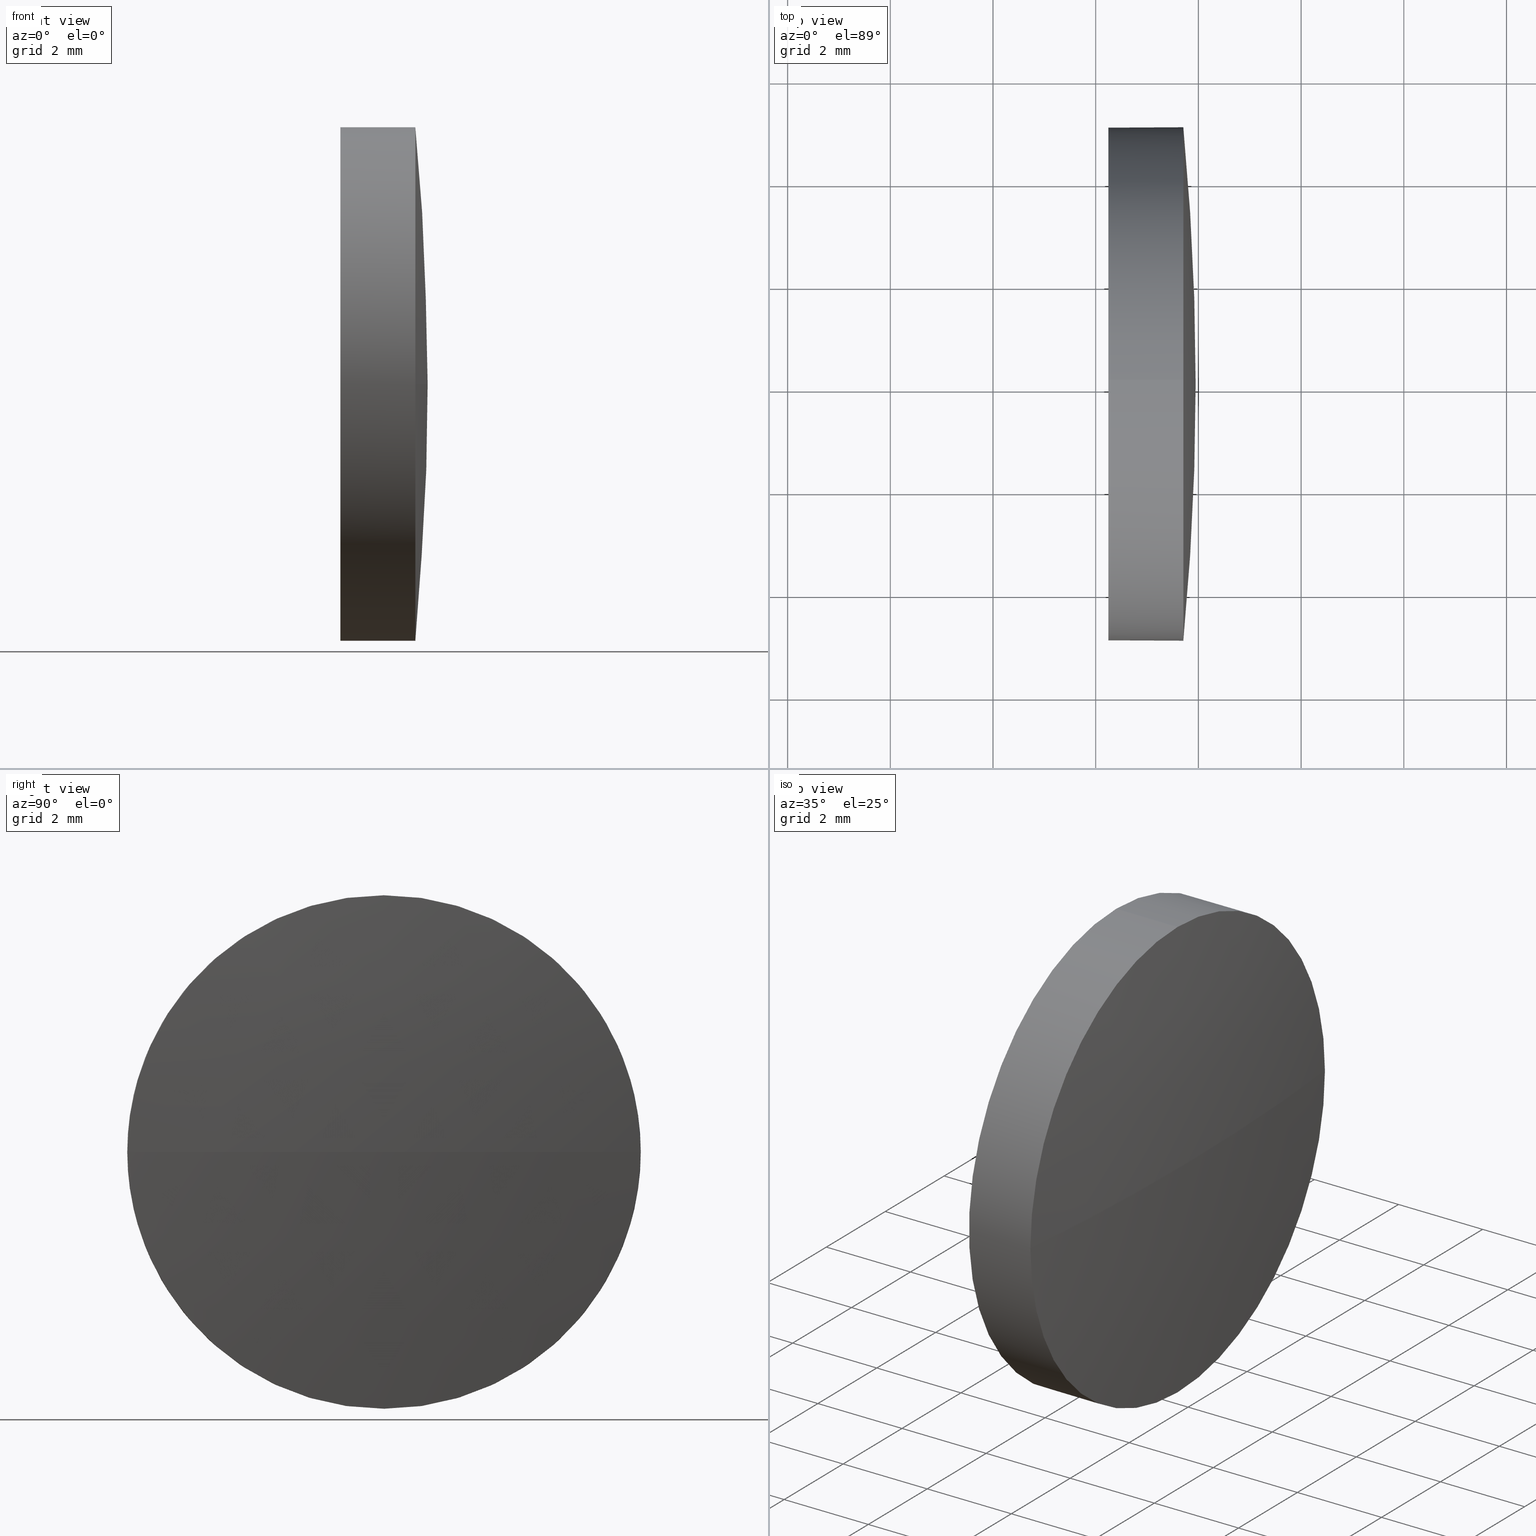
[diagram: canonical four-view strip — front | top / right | iso, engineering-drawing reading convention]
A machine part, canonical four-view strip (front | top / right | iso — engineering-drawing reading convention). The complete STEP part file that produces these views, byte-faithful:
ISO-10303-21;
HEADER;
FILE_DESCRIPTION (( 'STEP AP214' ),
    '1' );
FILE_NAME ('100022.STEP',
    '2019-04-19T09:07:38',
    ( '' ),
    ( '' ),
    'SwSTEP 2.0',
    'SolidWorks 2016',
    '' );
FILE_SCHEMA (( 'AUTOMOTIVE_DESIGN' ));
ENDSEC;

DATA;
#1 = EDGE_CURVE ( 'NONE', #61, #173, #166, .T. ) ;
#2 = CLOSED_SHELL ( 'NONE', ( #64, #90, #119, #7, #147 ) ) ;
#3 = FACE_OUTER_BOUND ( 'NONE', #56, .T. ) ;
#4 = ORIENTED_EDGE ( 'NONE', *, *, #122, .T. ) ;
#5 =( GEOMETRIC_REPRESENTATION_CONTEXT ( 3 ) GLOBAL_UNCERTAINTY_ASSIGNED_CONTEXT ( ( #62 ) ) GLOBAL_UNIT_ASSIGNED_CONTEXT ( ( #11, #157, #140 ) ) REPRESENTATION_CONTEXT ( 'NONE', 'WORKASPACE' ) );
#6 = PRODUCT_DEFINITION ( 'δ֪', '', #28, #55 ) ;
#7 = ADVANCED_FACE ( 'NONE', ( #73 ), #71, .T. ) ;
#8 = CIRCLE ( 'NONE', #115, 5.000000000000004400 ) ;
#9 = ORIENTED_EDGE ( 'NONE', *, *, #74, .T. ) ;
#10 = CARTESIAN_POINT ( 'NONE',  ( 861.0148035766878800, 272.0667611182083200, -5.000000000000004400 ) ) ;
#11 =( LENGTH_UNIT ( ) NAMED_UNIT ( * ) SI_UNIT ( .MILLI., .METRE. ) );
#12 = EDGE_CURVE ( 'NONE', #78, #118, #33, .T. ) ;
#13 = ORIENTED_EDGE ( 'NONE', *, *, #12, .F. ) ;
#14 = SURFACE_SIDE_STYLE ('',( #58 ) ) ;
#15 = DIRECTION ( 'NONE',  ( 0.0000000000000000000, 1.000000000000000000, 0.0000000000000000000 ) ) ;
#16 = EDGE_CURVE ( 'NONE', #160, #42, #150, .T. ) ;
#17 = PLANE ( 'NONE',  #85 ) ;
#18 = EDGE_CURVE ( 'NONE', #173, #118, #8, .T. ) ;
#19 = UNCERTAINTY_MEASURE_WITH_UNIT (LENGTH_MEASURE( 1.000000000000000100E-005 ), #128, 'distance_accuracy_value', 'NONE');
#20 = DIRECTION ( 'NONE',  ( -0.0000000000000000000, 0.0000000000000000000, -1.000000000000000000 ) ) ;
#21 = STYLED_ITEM ( 'NONE', ( #149 ), #39 ) ;
#22 = CIRCLE ( 'NONE', #131, 5.000000000000004400 ) ;
#23 = EDGE_LOOP ( 'NONE', ( #134, #67, #54, #132, #183 ) ) ;
#24 = EDGE_CURVE ( 'NONE', #118, #160, #38, .T. ) ;
#25 = DIRECTION ( 'NONE',  ( 0.0000000000000000000, 0.0000000000000000000, 1.000000000000000000 ) ) ;
#26 = AXIS2_PLACEMENT_3D ( 'NONE', #53, #130, #97 ) ;
#27 = DIRECTION ( 'NONE',  ( 0.0000000000000000000, 0.0000000000000000000, 1.000000000000000000 ) ) ;
#28 = PRODUCT_DEFINITION_FORMATION_WITH_SPECIFIED_SOURCE ( '�κ�', '', #80, .NOT_KNOWN. ) ;
#29 = CARTESIAN_POINT ( 'NONE',  ( 861.0148035766878800, 272.0667611182083200, 5.000000000000004400 ) ) ;
#30 = DIRECTION ( 'NONE',  ( 1.000000000000000000, 0.0000000000000000000, 0.0000000000000000000 ) ) ;
#31 = AXIS2_PLACEMENT_3D ( 'NONE', #129, #72, #156 ) ;
#32 =( LENGTH_UNIT ( ) NAMED_UNIT ( * ) SI_UNIT ( .MILLI., .METRE. ) );
#33 = CIRCLE ( 'NONE', #77, 52.20333333333326900 ) ;
#34 =( NAMED_UNIT ( * ) PLANE_ANGLE_UNIT ( ) SI_UNIT ( $, .RADIAN. ) );
#35 = SURFACE_STYLE_FILL_AREA ( #69 ) ;
#36 = SPHERICAL_SURFACE ( 'NONE', #75, 52.20333333333326900 ) ;
#37 = EDGE_CURVE ( 'NONE', #173, #154, #144, .T. ) ;
#38 = CIRCLE ( 'NONE', #151, 5.000000000000004400 ) ;
#39 = ADVANCED_BREP_SHAPE_REPRESENTATION ( '100022', ( #68, #174 ), #105 ) ;
#40 = AXIS2_PLACEMENT_3D ( 'NONE', #138, #139, #170 ) ;
#41 = COLOUR_RGB ( '',1.000000000000000000, 1.000000000000000000, 1.000000000000000000 ) ;
#42 = VERTEX_POINT ( 'NONE', #168 ) ;
#43 = UNCERTAINTY_MEASURE_WITH_UNIT (LENGTH_MEASURE( 1.000000000000000100E-005 ), #32, 'distance_accuracy_value', 'NONE');
#44 = DIRECTION ( 'NONE',  ( -1.000000000000000000, -0.0000000000000000000, -0.0000000000000000000 ) ) ;
#45 = ORIENTED_EDGE ( 'NONE', *, *, #122, .F. ) ;
#46 = DIRECTION ( 'NONE',  ( -0.0000000000000000000, 0.0000000000000000000, 1.000000000000000000 ) ) ;
#47 = CIRCLE ( 'NONE', #40, 5.000000000000004400 ) ;
#48 = CARTESIAN_POINT ( 'NONE',  ( 811.7429908174219700, 272.0667611182082100, 0.0000000000000000000 ) ) ;
#49 = ORIENTED_EDGE ( 'NONE', *, *, #18, .F. ) ;
#50 = CARTESIAN_POINT ( 'NONE',  ( 811.7429908174219700, 272.0667611182082100, 0.0000000000000000000 ) ) ;
#51 = MECHANICAL_DESIGN_GEOMETRIC_PRESENTATION_REPRESENTATION (  '', ( #21 ), #110 ) ;
#52 = ORIENTED_EDGE ( 'NONE', *, *, #1, .F. ) ;
#53 = CARTESIAN_POINT ( 'NONE',  ( 861.0148035766878800, 272.0667611182083200, 0.0000000000000000000 ) ) ;
#54 = ORIENTED_EDGE ( 'NONE', *, *, #63, .F. ) ;
#55 = PRODUCT_DEFINITION_CONTEXT ( 'detailed design', #82, 'design' ) ;
#56 = EDGE_LOOP ( 'NONE', ( #127, #107, #49, #52 ) ) ;
#57 = APPLICATION_PROTOCOL_DEFINITION ( 'draft international standard', 'automotive_design', 1998, #82 ) ;
#58 = SURFACE_STYLE_FILL_AREA ( #101 ) ;
#59 = CARTESIAN_POINT ( 'NONE',  ( 863.7063241507552200, 272.0667611182083200, 5.000000000000004400 ) ) ;
#60 = DIRECTION ( 'NONE',  ( 0.0000000000000000000, 1.224646799147353200E-016, -1.000000000000000000 ) ) ;
#61 = VERTEX_POINT ( 'NONE', #135 ) ;
#62 = UNCERTAINTY_MEASURE_WITH_UNIT (LENGTH_MEASURE( 1.000000000000000100E-005 ), #11, 'distance_accuracy_value', 'NONE');
#63 = EDGE_CURVE ( 'NONE', #154, #42, #22, .T. ) ;
#64 = ADVANCED_FACE ( 'NONE', ( #104 ), #148, .T. ) ;
#65 = ORIENTED_EDGE ( 'NONE', *, *, #37, .T. ) ;
#66 = FACE_OUTER_BOUND ( 'NONE', #112, .T. ) ;
#67 = ORIENTED_EDGE ( 'NONE', *, *, #16, .T. ) ;
#68 = MANIFOLD_SOLID_BREP ( '��ת1', #2 ) ;
#69 = FILL_AREA_STYLE ('',( #152 ) ) ;
#70 = DIRECTION ( 'NONE',  ( 0.0000000000000000000, 0.0000000000000000000, 1.000000000000000000 ) ) ;
#71 = CYLINDRICAL_SURFACE ( 'NONE', #26, 5.000000000000004400 ) ;
#72 = DIRECTION ( 'NONE',  ( -1.000000000000000000, -0.0000000000000000000, -0.0000000000000000000 ) ) ;
#73 = FACE_OUTER_BOUND ( 'NONE', #162, .T. ) ;
#74 = EDGE_CURVE ( 'NONE', #42, #154, #47, .T. ) ;
#75 = AXIS2_PLACEMENT_3D ( 'NONE', #103, #20, #15 ) ;
#76 = SPHERICAL_SURFACE ( 'NONE', #79, 52.20333333333326900 ) ;
#77 = AXIS2_PLACEMENT_3D ( 'NONE', #182, #46, #30 ) ;
#78 = VERTEX_POINT ( 'NONE', #125 ) ;
#79 = AXIS2_PLACEMENT_3D ( 'NONE', #48, #169, #186 ) ;
#80 = PRODUCT ( '100022', '100022', '', ( #92 ) ) ;
#81 = VECTOR ( 'NONE', #136, 1000.000000000000000 ) ;
#82 = APPLICATION_CONTEXT ( 'automotive_design' ) ;
#83 = CARTESIAN_POINT ( 'NONE',  ( 861.0148035766878800, 272.0667611182083200, 0.0000000000000000000 ) ) ;
#84 = SURFACE_STYLE_USAGE ( .BOTH. , #165 ) ;
#85 = AXIS2_PLACEMENT_3D ( 'NONE', #142, #185, #158 ) ;
#86 = ORIENTED_EDGE ( 'NONE', *, *, #74, .F. ) ;
#87 =( NAMED_UNIT ( * ) SI_UNIT ( $, .STERADIAN. ) SOLID_ANGLE_UNIT ( ) );
#88 = DIRECTION ( 'NONE',  ( 0.0000000000000000000, 1.000000000000000000, 1.224646799147353200E-016 ) ) ;
#89 = EDGE_LOOP ( 'NONE', ( #176, #9 ) ) ;
#90 = ADVANCED_FACE ( 'NONE', ( #66 ), #76, .T. ) ;
#91 = ORIENTED_EDGE ( 'NONE', *, *, #171, .T. ) ;
#92 = PRODUCT_CONTEXT ( 'NONE', #164, 'mechanical' ) ;
#93 = APPLICATION_PROTOCOL_DEFINITION ( 'draft international standard', 'automotive_design', 1998, #164 ) ;
#94 = AXIS2_PLACEMENT_3D ( 'NONE', #159, #143, #70 ) ;
#95 = PRODUCT_RELATED_PRODUCT_CATEGORY ( 'part', '', ( #80 ) ) ;
#96 = DIRECTION ( 'NONE',  ( -1.000000000000000000, -0.0000000000000000000, -0.0000000000000000000 ) ) ;
#97 = DIRECTION ( 'NONE',  ( 0.0000000000000000000, 0.0000000000000000000, 1.000000000000000000 ) ) ;
#98 = DIRECTION ( 'NONE',  ( 0.0000000000000000000, 0.0000000000000000000, 1.000000000000000000 ) ) ;
#99 = DIRECTION ( 'NONE',  ( -1.000000000000000000, -0.0000000000000000000, -0.0000000000000000000 ) ) ;
#100 =( NAMED_UNIT ( * ) PLANE_ANGLE_UNIT ( ) SI_UNIT ( $, .RADIAN. ) );
#101 = FILL_AREA_STYLE ('',( #155 ) ) ;
#102 = CIRCLE ( 'NONE', #31, 5.000000000000004400 ) ;
#103 = CARTESIAN_POINT ( 'NONE',  ( 811.7429908174219700, 272.0667611182082100, 0.0000000000000000000 ) ) ;
#104 = FACE_OUTER_BOUND ( 'NONE', #23, .T. ) ;
#105 =( GEOMETRIC_REPRESENTATION_CONTEXT ( 3 ) GLOBAL_UNCERTAINTY_ASSIGNED_CONTEXT ( ( #43 ) ) GLOBAL_UNIT_ASSIGNED_CONTEXT ( ( #32, #34, #87 ) ) REPRESENTATION_CONTEXT ( 'NONE', 'WORKASPACE' ) );
#106 = VECTOR ( 'NONE', #99, 1000.000000000000000 ) ;
#107 = ORIENTED_EDGE ( 'NONE', *, *, #12, .T. ) ;
#108 = ORIENTED_EDGE ( 'NONE', *, *, #1, .T. ) ;
#109 = DIRECTION ( 'NONE',  ( -1.000000000000000000, -0.0000000000000000000, -0.0000000000000000000 ) ) ;
#110 =( GEOMETRIC_REPRESENTATION_CONTEXT ( 3 ) GLOBAL_UNCERTAINTY_ASSIGNED_CONTEXT ( ( #19 ) ) GLOBAL_UNIT_ASSIGNED_CONTEXT ( ( #128, #100, #113 ) ) REPRESENTATION_CONTEXT ( 'NONE', 'WORKASPACE' ) );
#111 = CARTESIAN_POINT ( 'NONE',  ( 863.7063241507552200, 272.0667611182083200, 0.0000000000000000000 ) ) ;
#112 = EDGE_LOOP ( 'NONE', ( #13, #91, #45, #137 ) ) ;
#113 =( NAMED_UNIT ( * ) SI_UNIT ( $, .STERADIAN. ) SOLID_ANGLE_UNIT ( ) );
#114 = CARTESIAN_POINT ( 'NONE',  ( 863.7063241507552200, 272.0667611182083200, -5.000000000000004400 ) ) ;
#115 = AXIS2_PLACEMENT_3D ( 'NONE', #111, #44, #98 ) ;
#116 = CARTESIAN_POINT ( 'NONE',  ( 862.2463241507551900, 272.0667611182083200, 5.000000000000004400 ) ) ;
#117 = CARTESIAN_POINT ( 'NONE',  ( 0.0000000000000000000, 0.0000000000000000000, 0.0000000000000000000 ) ) ;
#118 = VERTEX_POINT ( 'NONE', #133 ) ;
#119 = ADVANCED_FACE ( 'NONE', ( #3 ), #36, .T. ) ;
#120 = PRODUCT_DEFINITION_SHAPE ( 'NONE', 'NONE',  #6 ) ;
#121 = AXIS2_PLACEMENT_3D ( 'NONE', #50, #60, #88 ) ;
#122 = EDGE_CURVE ( 'NONE', #160, #61, #102, .T. ) ;
#123 = SHAPE_DEFINITION_REPRESENTATION ( #120, #39 ) ;
#124 = PRESENTATION_LAYER_ASSIGNMENT (  '', '', ( #21 ) ) ;
#125 = CARTESIAN_POINT ( 'NONE',  ( 863.9463241507552300, 272.0667611182082100, 0.0000000000000000000 ) ) ;
#126 = DIRECTION ( 'NONE',  ( 0.0000000000000000000, 0.0000000000000000000, 1.000000000000000000 ) ) ;
#127 = ORIENTED_EDGE ( 'NONE', *, *, #171, .F. ) ;
#128 =( LENGTH_UNIT ( ) NAMED_UNIT ( * ) SI_UNIT ( .MILLI., .METRE. ) );
#129 = CARTESIAN_POINT ( 'NONE',  ( 863.7063241507552200, 272.0667611182083200, 0.0000000000000000000 ) ) ;
#130 = DIRECTION ( 'NONE',  ( -1.000000000000000000, -0.0000000000000000000, -0.0000000000000000000 ) ) ;
#131 = AXIS2_PLACEMENT_3D ( 'NONE', #180, #109, #27 ) ;
#132 = ORIENTED_EDGE ( 'NONE', *, *, #37, .F. ) ;
#133 = CARTESIAN_POINT ( 'NONE',  ( 863.7063241507552200, 277.0667611182083800, 0.0000000000000000000 ) ) ;
#134 = ORIENTED_EDGE ( 'NONE', *, *, #24, .T. ) ;
#135 = CARTESIAN_POINT ( 'NONE',  ( 863.7063241507552200, 267.0667611182081500, -6.123233995736804700E-016 ) ) ;
#136 = DIRECTION ( 'NONE',  ( -1.000000000000000000, -0.0000000000000000000, -0.0000000000000000000 ) ) ;
#137 = ORIENTED_EDGE ( 'NONE', *, *, #24, .F. ) ;
#138 = CARTESIAN_POINT ( 'NONE',  ( 862.2463241507551900, 272.0667611182083200, 0.0000000000000000000 ) ) ;
#139 = DIRECTION ( 'NONE',  ( -1.000000000000000000, -0.0000000000000000000, -0.0000000000000000000 ) ) ;
#140 =( NAMED_UNIT ( * ) SI_UNIT ( $, .STERADIAN. ) SOLID_ANGLE_UNIT ( ) );
#141 = STYLED_ITEM ( 'NONE', ( #179 ), #68 ) ;
#142 = CARTESIAN_POINT ( 'NONE',  ( 862.2463241507551900, 272.0667611182083200, 0.0000000000000000000 ) ) ;
#143 = DIRECTION ( 'NONE',  ( -1.000000000000000000, -0.0000000000000000000, -0.0000000000000000000 ) ) ;
#144 = LINE ( 'NONE', #29, #106 ) ;
#145 = COLOUR_RGB ( '',1.000000000000000000, 1.000000000000000000, 1.000000000000000000 ) ;
#146 = ORIENTED_EDGE ( 'NONE', *, *, #16, .F. ) ;
#147 = ADVANCED_FACE ( 'NONE', ( #184 ), #17, .F. ) ;
#148 = CYLINDRICAL_SURFACE ( 'NONE', #172, 5.000000000000004400 ) ;
#149 = PRESENTATION_STYLE_ASSIGNMENT (( #175 ) ) ;
#150 = LINE ( 'NONE', #10, #81 ) ;
#151 = AXIS2_PLACEMENT_3D ( 'NONE', #153, #167, #126 ) ;
#152 = FILL_AREA_STYLE_COLOUR ( '', #41 ) ;
#153 = CARTESIAN_POINT ( 'NONE',  ( 863.7063241507552200, 272.0667611182083200, 0.0000000000000000000 ) ) ;
#154 = VERTEX_POINT ( 'NONE', #116 ) ;
#155 = FILL_AREA_STYLE_COLOUR ( '', #145 ) ;
#156 = DIRECTION ( 'NONE',  ( 0.0000000000000000000, 0.0000000000000000000, 1.000000000000000000 ) ) ;
#157 =( NAMED_UNIT ( * ) PLANE_ANGLE_UNIT ( ) SI_UNIT ( $, .RADIAN. ) );
#158 = DIRECTION ( 'NONE',  ( 0.0000000000000000000, 0.0000000000000000000, -1.000000000000000000 ) ) ;
#159 = CARTESIAN_POINT ( 'NONE',  ( 863.7063241507552200, 272.0667611182083200, 0.0000000000000000000 ) ) ;
#160 = VERTEX_POINT ( 'NONE', #114 ) ;
#161 = PRESENTATION_LAYER_ASSIGNMENT (  '', '', ( #141 ) ) ;
#162 = EDGE_LOOP ( 'NONE', ( #146, #4, #108, #65, #86 ) ) ;
#163 = DIRECTION ( 'NONE',  ( 1.000000000000000000, 0.0000000000000000000, 0.0000000000000000000 ) ) ;
#164 = APPLICATION_CONTEXT ( 'automotive_design' ) ;
#165 = SURFACE_SIDE_STYLE ('',( #35 ) ) ;
#166 = CIRCLE ( 'NONE', #94, 5.000000000000004400 ) ;
#167 = DIRECTION ( 'NONE',  ( -1.000000000000000000, -0.0000000000000000000, -0.0000000000000000000 ) ) ;
#168 = CARTESIAN_POINT ( 'NONE',  ( 862.2463241507551900, 272.0667611182083200, -5.000000000000004400 ) ) ;
#169 = DIRECTION ( 'NONE',  ( -0.0000000000000000000, 0.0000000000000000000, -1.000000000000000000 ) ) ;
#170 = DIRECTION ( 'NONE',  ( 0.0000000000000000000, 0.0000000000000000000, 1.000000000000000000 ) ) ;
#171 = EDGE_CURVE ( 'NONE', #78, #61, #177, .T. ) ;
#172 = AXIS2_PLACEMENT_3D ( 'NONE', #83, #96, #181 ) ;
#173 = VERTEX_POINT ( 'NONE', #59 ) ;
#174 = AXIS2_PLACEMENT_3D ( 'NONE', #117, #25, #163 ) ;
#175 = SURFACE_STYLE_USAGE ( .BOTH. , #14 ) ;
#176 = ORIENTED_EDGE ( 'NONE', *, *, #63, .T. ) ;
#177 = CIRCLE ( 'NONE', #121, 52.20333333333326900 ) ;
#178 = MECHANICAL_DESIGN_GEOMETRIC_PRESENTATION_REPRESENTATION (  '', ( #141 ), #5 ) ;
#179 = PRESENTATION_STYLE_ASSIGNMENT (( #84 ) ) ;
#180 = CARTESIAN_POINT ( 'NONE',  ( 862.2463241507551900, 272.0667611182083200, 0.0000000000000000000 ) ) ;
#181 = DIRECTION ( 'NONE',  ( 0.0000000000000000000, 0.0000000000000000000, 1.000000000000000000 ) ) ;
#182 = CARTESIAN_POINT ( 'NONE',  ( 811.7429908174219700, 272.0667611182082100, 0.0000000000000000000 ) ) ;
#183 = ORIENTED_EDGE ( 'NONE', *, *, #18, .T. ) ;
#184 = FACE_OUTER_BOUND ( 'NONE', #89, .T. ) ;
#185 = DIRECTION ( 'NONE',  ( 1.000000000000000000, 0.0000000000000000000, 0.0000000000000000000 ) ) ;
#186 = DIRECTION ( 'NONE',  ( 0.0000000000000000000, 1.000000000000000000, 0.0000000000000000000 ) ) ;
ENDSEC;
END-ISO-10303-21;
